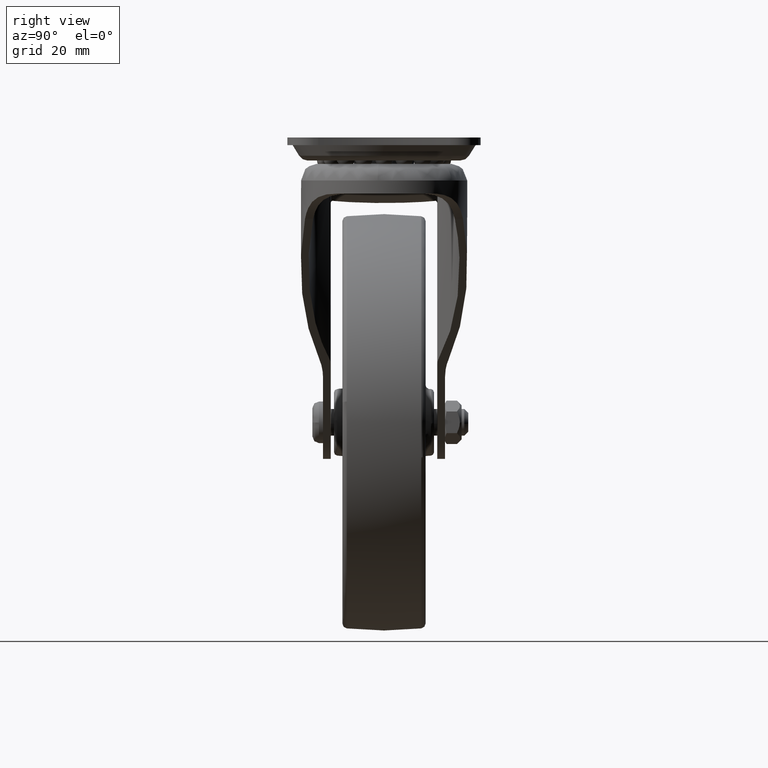
[diagram: clean part render]
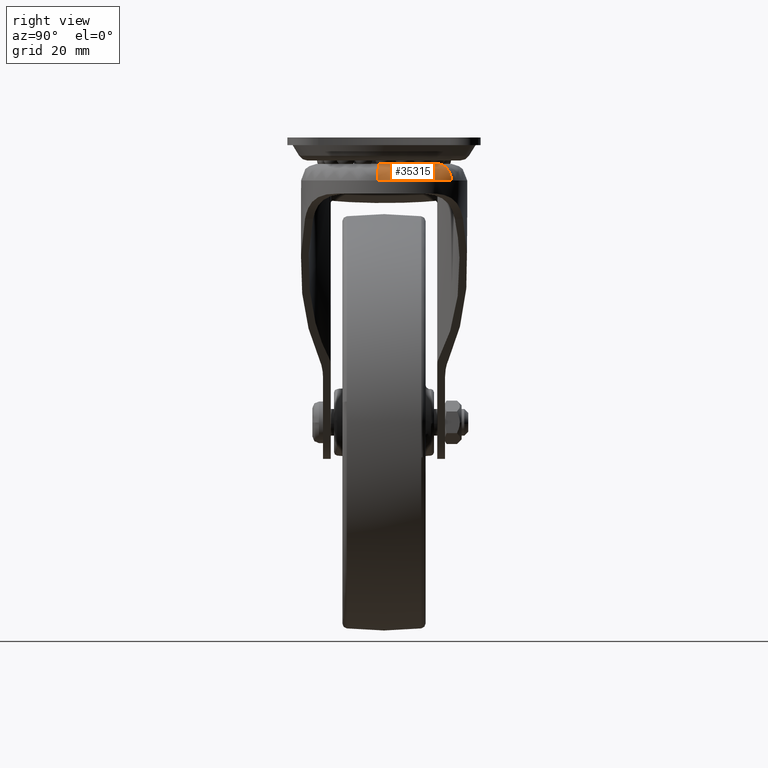
[diagram: same view with one face highlighted and labeled with its STEP entity id]
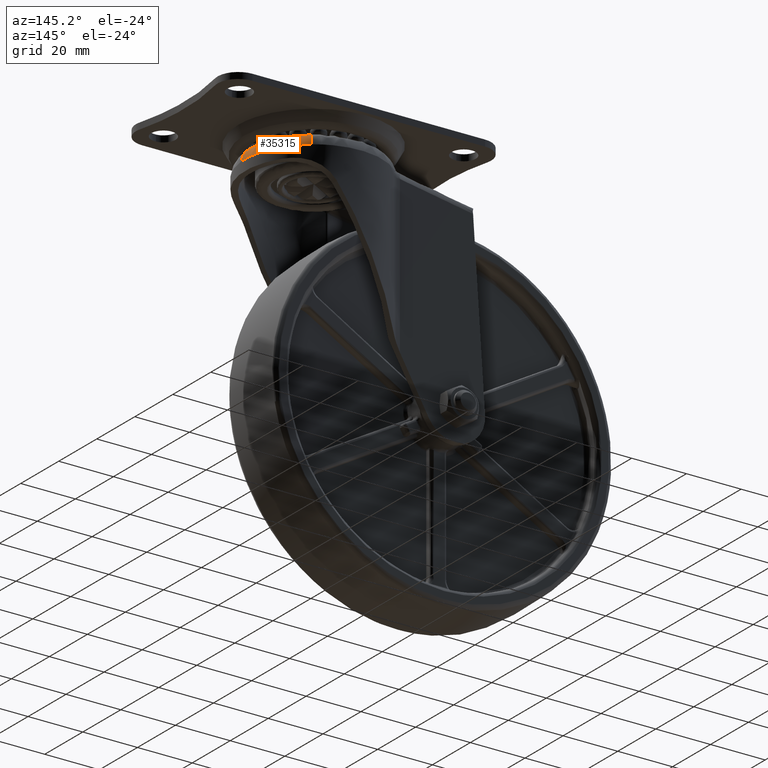
[diagram: same view with one face highlighted and labeled with its STEP entity id]
A machine part, right view. The second image highlights one B-rep face of the part: STEP entity #35315.
A second angle (auxiliary view) of the same face is appended — the face is thin or edge-on in the first view.
In plain terms, the highlighted face is a freeform B-spline surface patch.
Its self-contained STEP definition (entity closure, byte-faithful):
#34587=CARTESIAN_POINT('',(59.207680699010382,-1.526517021763737,77.592953951179368));
#34588=VERTEX_POINT('',#34587);
#34602=CARTESIAN_POINT('',(50.937016655744088,16.376454061563980,77.592953950105681));
#34603=VERTEX_POINT('',#34602);
#34604=CARTESIAN_POINT('',(59.207680699010375,-1.526517021763737,77.592953951179368));
#34605=CARTESIAN_POINT('',(59.265256309324499,-0.764344300155185,77.592953951399991));
#34606=CARTESIAN_POINT('',(59.265256309324499,4.381237E-014,77.592953951399991));
#34607=CARTESIAN_POINT('',(59.265256309324492,10.305888627512180,77.592953951399991));
#34608=CARTESIAN_POINT('',(50.937016655744088,16.376454061563983,77.592953950105681));
#34616=(BOUNDED_CURVE()B_SPLINE_CURVE(2,(#34604,#34605,#34606,#34607,#34608),.UNSPECIFIED.,.F.,.U.)B_SPLINE_CURVE_WITH_KNOTS((3,2,3),(0.236870159254452,0.250000000000000,0.398515029589884),.UNSPECIFIED.)CURVE()GEOMETRIC_REPRESENTATION_ITEM()RATIONAL_B_SPLINE_CURVE((0.970850634510660,0.984617434726113,1.0,0.826003819764975,0.858736022379002))REPRESENTATION_ITEM(''));
#34617=EDGE_CURVE('',#34588,#34603,#34616,.T.);
#35130=CARTESIAN_POINT('',(53.725963070297787,20.202623880383090,72.599995000010935));
#35131=VERTEX_POINT('',#35130);
#35132=CARTESIAN_POINT('',(53.725963070297801,20.202623880383090,72.599995000010935));
#35133=CARTESIAN_POINT('',(53.725963070285658,20.202623880366463,77.341415558924908));
#35134=CARTESIAN_POINT('',(50.937016655744081,16.376454061563980,77.592953950105681));
#35142=(BOUNDED_CURVE()B_SPLINE_CURVE(2,(#35132,#35133,#35134),.UNSPECIFIED.,.F.,.U.)B_SPLINE_CURVE_WITH_KNOTS((3,3),(-1.716453736836620,-0.273316049752789),.UNSPECIFIED.)CURVE()GEOMETRIC_REPRESENTATION_ITEM()RATIONAL_B_SPLINE_CURVE((0.766541850167459,0.557301684342145,0.769529581880481))REPRESENTATION_ITEM(''));
#35143=EDGE_CURVE('',#35131,#34603,#35142,.T.);
#35242=CARTESIAN_POINT('',(63.928972506515343,-1.883170138198317,72.599995000010921));
#35243=VERTEX_POINT('',#35242);
#35259=CARTESIAN_POINT('',(63.928972506515350,-1.883170138198318,72.599995000010921));
#35260=CARTESIAN_POINT('',(63.928972506494823,-1.883170138196765,77.341415597363380));
#35261=CARTESIAN_POINT('',(59.207680699010396,-1.526517021763737,77.592953951179382));
#35269=(BOUNDED_CURVE()B_SPLINE_CURVE(2,(#35259,#35260,#35261),.UNSPECIFIED.,.F.,.U.)B_SPLINE_CURVE_WITH_KNOTS((3,3),(-1.716453736836624,-0.273316041246899),.UNSPECIFIED.)CURVE()GEOMETRIC_REPRESENTATION_ITEM()RATIONAL_B_SPLINE_CURVE((0.886139893955594,0.644253479785205,0.889593782976356))REPRESENTATION_ITEM(''));
#35270=EDGE_CURVE('',#35243,#34588,#35269,.T.);
#35278=CARTESIAN_POINT('',(63.917476478549872,-1.882301711849544,72.260650173845889));
#35279=CARTESIAN_POINT('',(64.965823356032629,11.995472768507497,72.260650173845875));
#35280=CARTESIAN_POINT('',(53.719172173351254,20.193307414209297,72.260650173845875));
#35281=CARTESIAN_POINT('',(64.284989815366472,-1.910064193480176,77.678599923360792));
#35282=CARTESIAN_POINT('',(65.348798991345518,12.172396632673358,77.678599923360807));
#35283=CARTESIAN_POINT('',(53.936268478639782,20.491142943242426,77.678599923360792));
#35284=CARTESIAN_POINT('',(58.870522230142512,-1.501047589684265,77.599464073260521));
#35285=CARTESIAN_POINT('',(59.706529839173619,9.565828566664262,77.599464073260521));
#35286=CARTESIAN_POINT('',(50.737851468693037,16.103218326284487,77.599464073260506));
#35294=(BOUNDED_SURFACE()B_SPLINE_SURFACE(2,2,((#35278,#35281,#35284),(#35279,#35282,#35285),(#35280,#35283,#35286)),.UNSPECIFIED.,.F.,.F.,.U.)B_SPLINE_SURFACE_WITH_KNOTS((3,3),(3,3),(0.0,26.145748368242820),(0.0,8.771733448639786),.UNSPECIFIED.)GEOMETRIC_REPRESENTATION_ITEM()RATIONAL_B_SPLINE_SURFACE(((0.911519681435157,0.618700976126748,0.915319007908730),(0.740653803990449,0.502724451083043,0.743740940409514),(0.788496249674967,0.535197878095281,0.791782799309295)))REPRESENTATION_ITEM('')SURFACE());
#35295=ORIENTED_EDGE('',*,*,#34617,.F.);
#35296=ORIENTED_EDGE('',*,*,#35270,.F.);
#35297=CARTESIAN_POINT('',(53.725963070297794,20.202623880383097,72.599995000010935));
#35298=CARTESIAN_POINT('',(55.379605837115285,18.997261524493041,72.599995000000092));
#35299=CARTESIAN_POINT('',(56.815226134607236,17.539034117442370,72.599995000000092));
#35300=CARTESIAN_POINT('',(64.784651551507991,9.444111956148507,72.599995000000092));
#35301=CARTESIAN_POINT('',(63.928972506515343,-1.883170138198317,72.599995000010921));
#35309=(BOUNDED_CURVE()B_SPLINE_CURVE(2,(#35297,#35298,#35299,#35300,#35301),.UNSPECIFIED.,.F.,.U.)B_SPLINE_CURVE_WITH_KNOTS((3,2,3),(0.295704236034783,0.333333333333333,0.515345470707050),.UNSPECIFIED.)CURVE()GEOMETRIC_REPRESENTATION_ITEM()RATIONAL_B_SPLINE_CURVE((0.942439226732751,0.967557237800003,1.0,0.843074192200830,0.857522794521404))REPRESENTATION_ITEM(''));
#35310=EDGE_CURVE('',#35131,#35243,#35309,.T.);
#35311=ORIENTED_EDGE('',*,*,#35310,.F.);
#35312=ORIENTED_EDGE('',*,*,#35143,.T.);
#35313=EDGE_LOOP('',(#35295,#35296,#35311,#35312));
#35314=FACE_OUTER_BOUND('',#35313,.T.);
#35315=ADVANCED_FACE('',(#35314),#35294,.T.);